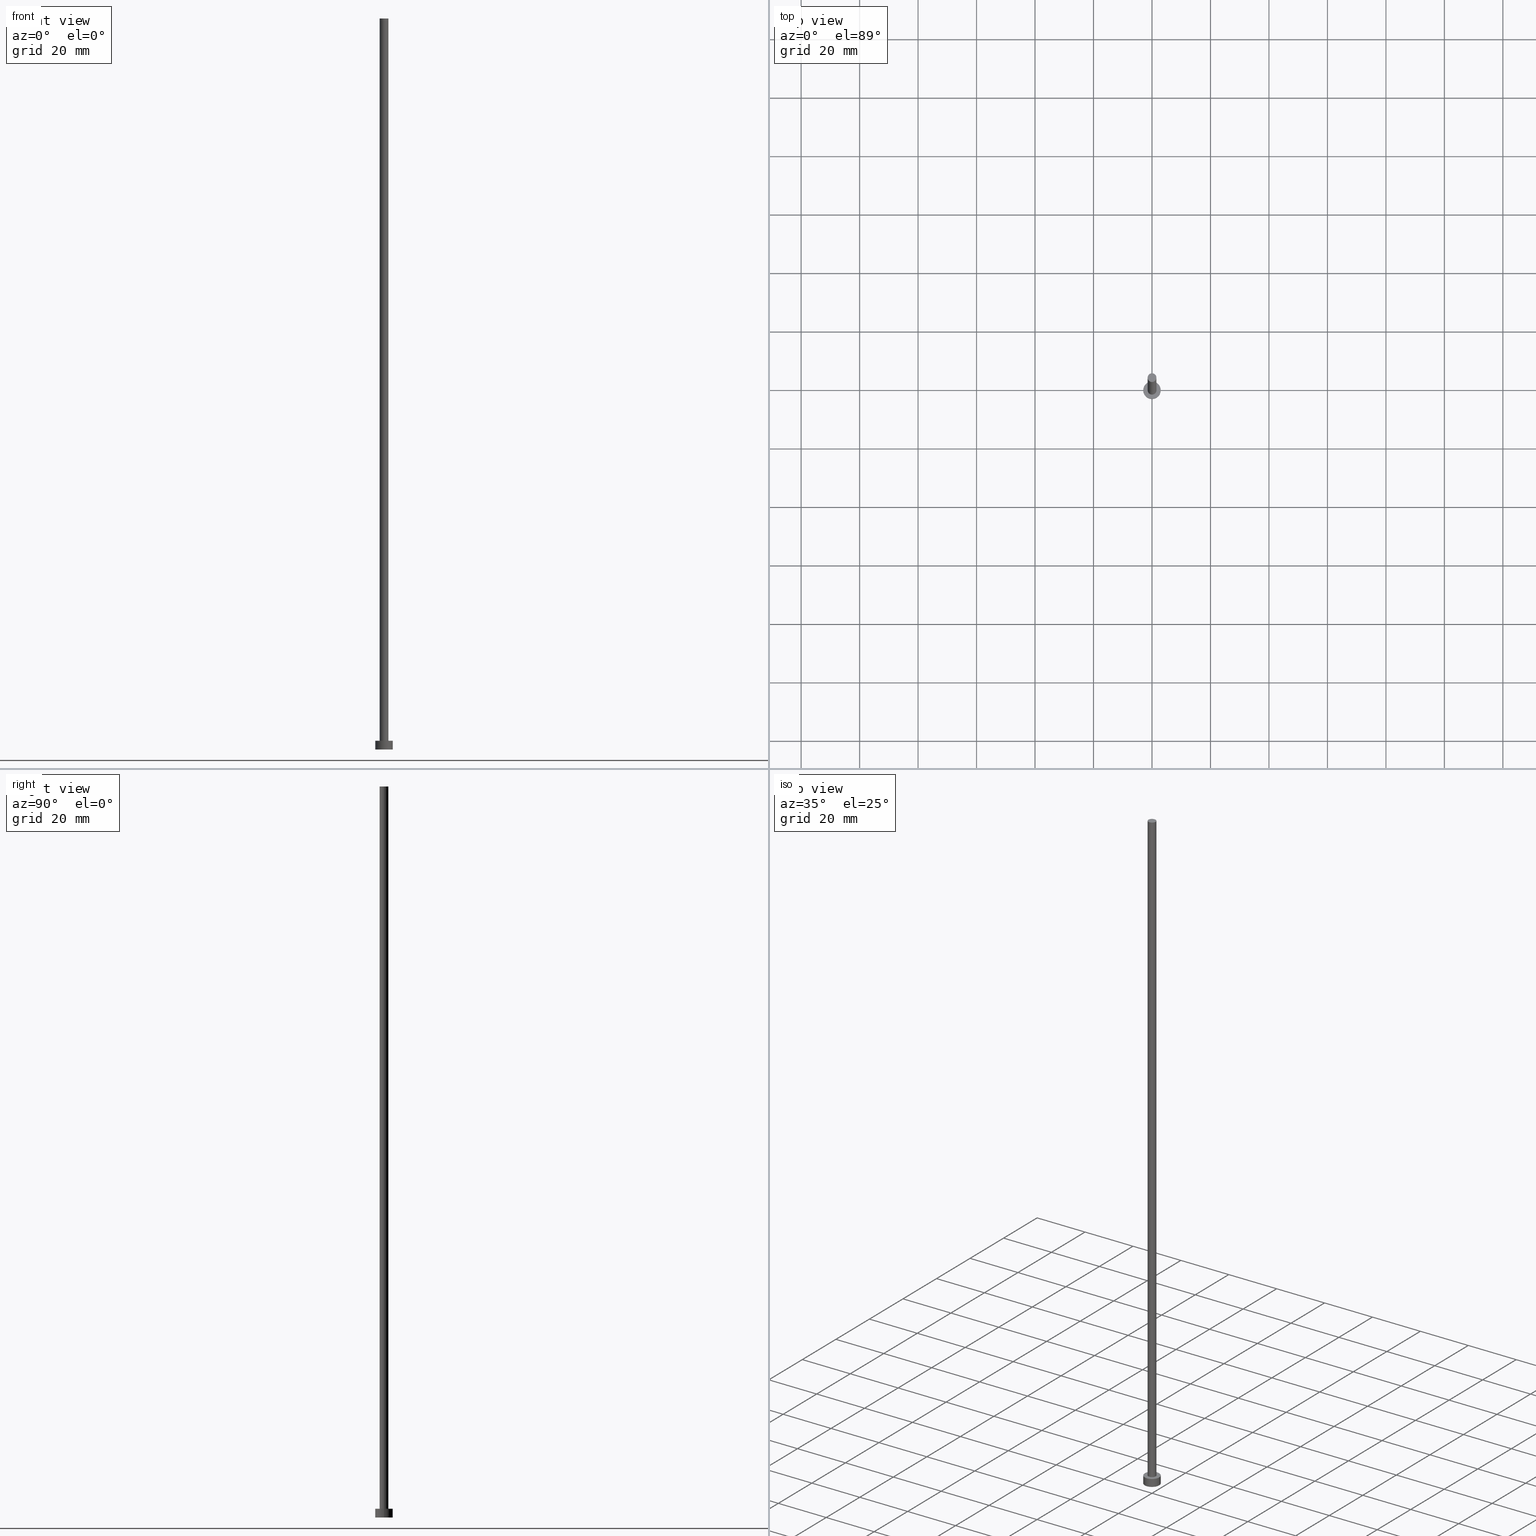
[diagram: canonical four-view strip — front | top / right | iso, engineering-drawing reading convention]
A machine part, canonical four-view strip (front | top / right | iso — engineering-drawing reading convention). The complete STEP part file that produces these views, byte-faithful:
ISO-10303-21;
HEADER;
FILE_DESCRIPTION (( 'STEP AP203' ),
    '1' );
FILE_NAME ('94ea.STEP',
    '2023-02-12T12:46:11',
    ( '' ),
    ( '' ),
    'SwSTEP 2.0',
    'SolidWorks 2019',
    '' );
FILE_SCHEMA (( 'CONFIG_CONTROL_DESIGN' ));
ENDSEC;

DATA;
#1 = LINE ( 'NONE', #101, #61 ) ;
#2 = AXIS2_PLACEMENT_3D ( 'NONE', #203, #209, #184 ) ;
#3 = APPROVAL_STATUS ( 'not_yet_approved' ) ;
#4 = DIRECTION ( 'NONE',  ( 1.000000000000000000, 0.000000000000000000, 0.000000000000000000 ) ) ;
#5 = CARTESIAN_POINT ( 'NONE',  ( -3.000000000000000444, 0.000000000000000000, 3.000000000000000000 ) ) ;
#6 = ADVANCED_FACE ( 'NONE', ( #95 ), #83, .T. ) ;
#7 = CC_DESIGN_APPROVAL ( #30, ( #85 ) ) ;
#8 = ORIENTED_EDGE ( 'NONE', *, *, #188, .F. ) ;
#9 = FACE_BOUND ( 'NONE', #77, .T. ) ;
#10 = DIRECTION ( 'NONE',  ( 0.000000000000000000, 0.000000000000000000, 1.000000000000000000 ) ) ;
#11 = ORIENTED_EDGE ( 'NONE', *, *, #226, .F. ) ;
#12 = COORDINATED_UNIVERSAL_TIME_OFFSET ( 1, 0, .AHEAD. ) ;
#13 = AXIS2_PLACEMENT_3D ( 'NONE', #186, #60, #115 ) ;
#14 = PERSON_AND_ORGANIZATION ( #250, #102 ) ;
#15 = DIRECTION ( 'NONE',  ( -0.000000000000000000, -0.000000000000000000, -1.000000000000000000 ) ) ;
#16 = DATE_AND_TIME ( #178, #173 ) ;
#17 = ORIENTED_EDGE ( 'NONE', *, *, #138, .F. ) ;
#18 = APPROVAL_PERSON_ORGANIZATION ( #108, #30, #183 ) ;
#19 = ADVANCED_FACE ( 'NONE', ( #9, #67 ), #44, .T. ) ;
#20 = ORIENTED_EDGE ( 'NONE', *, *, #97, .F. ) ;
#21 = ORIENTED_EDGE ( 'NONE', *, *, #71, .F. ) ;
#22 = ORIENTED_EDGE ( 'NONE', *, *, #175, .F. ) ;
#23 = DATE_AND_TIME ( #201, #143 ) ;
#24 = DIRECTION ( 'NONE',  ( 1.000000000000000000, 0.000000000000000000, -0.000000000000000000 ) ) ;
#25 = DIRECTION ( 'NONE',  ( -1.000000000000000000, 0.000000000000000000, 0.000000000000000000 ) ) ;
#26 = CC_DESIGN_APPROVAL ( #232, ( #233 ) ) ;
#27 = DIRECTION ( 'NONE',  ( -1.000000000000000000, 0.000000000000000000, 0.000000000000000000 ) ) ;
#28 = APPROVAL_ROLE ( '' ) ;
#29 = CARTESIAN_POINT ( 'NONE',  ( -1.500000000000000222, 0.000000000000000000, 250.0000000000000000 ) ) ;
#30 = APPROVAL ( #3, 'NEUR�EN�' ) ;
#31 = DIRECTION ( 'NONE',  ( 1.000000000000000000, 0.000000000000000000, 0.000000000000000000 ) ) ;
#32 = EDGE_LOOP ( 'NONE', ( #107, #89 ) ) ;
#33 = AXIS2_PLACEMENT_3D ( 'NONE', #187, #212, #234 ) ;
#34 = CARTESIAN_POINT ( 'NONE',  ( 3.000000000000000444, 3.673940397442060361E-16, 3.000000000000000000 ) ) ;
#35 = DIRECTION ( 'NONE',  ( 0.000000000000000000, 0.000000000000000000, 1.000000000000000000 ) ) ;
#36 = EDGE_LOOP ( 'NONE', ( #66, #21, #244, #160 ) ) ;
#37 = EDGE_CURVE ( 'NONE', #238, #55, #251, .T. ) ;
#38 =( LENGTH_UNIT ( ) NAMED_UNIT ( * ) SI_UNIT ( .MILLI., .METRE. ) );
#39 = ORIENTED_EDGE ( 'NONE', *, *, #164, .F. ) ;
#40 = DATE_AND_TIME ( #158, #247 ) ;
#41 = DIRECTION ( 'NONE',  ( 0.000000000000000000, 0.000000000000000000, 1.000000000000000000 ) ) ;
#42 = DIRECTION ( 'NONE',  ( 0.000000000000000000, 0.000000000000000000, 1.000000000000000000 ) ) ;
#43 = CC_DESIGN_DATE_AND_TIME_ASSIGNMENT ( #40, #214, ( #85 ) ) ;
#44 = PLANE ( 'NONE',  #159 ) ;
#45 =( NAMED_UNIT ( * ) SI_UNIT ( $, .STERADIAN. ) SOLID_ANGLE_UNIT ( ) );
#46 = CARTESIAN_POINT ( 'NONE',  ( 0.000000000000000000, 0.000000000000000000, 3.000000000000000000 ) ) ;
#47 = AXIS2_PLACEMENT_3D ( 'NONE', #110, #248, #24 ) ;
#48 = CALENDAR_DATE ( 2023, 12, 2 ) ;
#49 = PERSON_AND_ORGANIZATION_ROLE ( 'creator' ) ;
#50 = CARTESIAN_POINT ( 'NONE',  ( 0.000000000000000000, 0.000000000000000000, 250.0000000000000000 ) ) ;
#51 = PRODUCT_RELATED_PRODUCT_CATEGORY ( 'detail', '', ( #198 ) ) ;
#52 =( NAMED_UNIT ( * ) PLANE_ANGLE_UNIT ( ) SI_UNIT ( $, .RADIAN. ) );
#53 = ORIENTED_EDGE ( 'NONE', *, *, #255, .F. ) ;
#54 = LOCAL_TIME ( 13, 46, 11.00000000000000000, #150 ) ;
#55 = VERTEX_POINT ( 'NONE', #82 ) ;
#56 = ADVANCED_FACE ( 'NONE', ( #146 ), #231, .T. ) ;
#57 = ORIENTED_EDGE ( 'NONE', *, *, #37, .T. ) ;
#58 = SECURITY_CLASSIFICATION_LEVEL ( 'unclassified' ) ;
#59 = CARTESIAN_POINT ( 'NONE',  ( 0.000000000000000000, 0.000000000000000000, 3.000000000000000000 ) ) ;
#60 = DIRECTION ( 'NONE',  ( 0.000000000000000000, 0.000000000000000000, 1.000000000000000000 ) ) ;
#61 = VECTOR ( 'NONE', #15, 1000.000000000000000 ) ;
#62 = ADVANCED_FACE ( 'NONE', ( #145 ), #202, .T. ) ;
#63 = PERSON_AND_ORGANIZATION_ROLE ( 'design_owner' ) ;
#64 = VERTEX_POINT ( 'NONE', #137 ) ;
#65 = LOCAL_TIME ( 13, 46, 11.00000000000000000, #124 ) ;
#66 = ORIENTED_EDGE ( 'NONE', *, *, #169, .F. ) ;
#67 = FACE_OUTER_BOUND ( 'NONE', #74, .T. ) ;
#68 = APPROVAL_STATUS ( 'not_yet_approved' ) ;
#69 = CARTESIAN_POINT ( 'NONE',  ( 0.000000000000000000, 0.000000000000000000, 250.0000000000000000 ) ) ;
#70 = ADVANCED_FACE ( 'NONE', ( #116 ), #229, .F. ) ;
#71 = EDGE_CURVE ( 'NONE', #241, #192, #215, .T. ) ;
#72 = LINE ( 'NONE', #34, #249 ) ;
#73 = CARTESIAN_POINT ( 'NONE',  ( 0.000000000000000000, 0.000000000000000000, 3.000000000000000000 ) ) ;
#74 = EDGE_LOOP ( 'NONE', ( #134, #239 ) ) ;
#75 =( GEOMETRIC_REPRESENTATION_CONTEXT ( 3 ) GLOBAL_UNCERTAINTY_ASSIGNED_CONTEXT ( ( #207 ) ) GLOBAL_UNIT_ASSIGNED_CONTEXT ( ( #38, #52, #45 ) ) REPRESENTATION_CONTEXT ( 'NONE', 'WORKASPACE' ) );
#76 = DESIGN_CONTEXT ( 'detailed design', #154, 'design' ) ;
#77 = EDGE_LOOP ( 'NONE', ( #20, #17 ) ) ;
#78 = CIRCLE ( 'NONE', #230, 1.500000000000000222 ) ;
#79 = PERSON_AND_ORGANIZATION ( #250, #102 ) ;
#80 = DIRECTION ( 'NONE',  ( 0.000000000000000000, 0.000000000000000000, 1.000000000000000000 ) ) ;
#81 = PERSON_AND_ORGANIZATION ( #250, #102 ) ;
#82 = CARTESIAN_POINT ( 'NONE',  ( -1.500000000000000222, 0.000000000000000000, 3.000000000000000000 ) ) ;
#83 = CYLINDRICAL_SURFACE ( 'NONE', #220, 3.000000000000000444 ) ;
#84 = APPROVAL ( #68, 'NEUR�EN�' ) ;
#85 = SECURITY_CLASSIFICATION ( '', '', #58 ) ;
#86 = CC_DESIGN_PERSON_AND_ORGANIZATION_ASSIGNMENT ( #224, #196, ( #85 ) ) ;
#87 = DIRECTION ( 'NONE',  ( 1.000000000000000000, 0.000000000000000000, 0.000000000000000000 ) ) ;
#88 = CC_DESIGN_APPROVAL ( #84, ( #136 ) ) ;
#89 = ORIENTED_EDGE ( 'NONE', *, *, #123, .T. ) ;
#90 = ORIENTED_EDGE ( 'NONE', *, *, #205, .F. ) ;
#91 = PRODUCT_DEFINITION_SHAPE ( 'NONE', 'NONE',  #233 ) ;
#92 = PERSON_AND_ORGANIZATION_ROLE ( 'creator' ) ;
#93 = MECHANICAL_CONTEXT ( 'NONE', #243, 'mechanical' ) ;
#94 = DIRECTION ( 'NONE',  ( -0.000000000000000000, -0.000000000000000000, -1.000000000000000000 ) ) ;
#95 = FACE_OUTER_BOUND ( 'NONE', #174, .T. ) ;
#96 = DIRECTION ( 'NONE',  ( -1.000000000000000000, 0.000000000000000000, 0.000000000000000000 ) ) ;
#97 = EDGE_CURVE ( 'NONE', #55, #199, #139, .T. ) ;
#98 = CARTESIAN_POINT ( 'NONE',  ( 1.500000000000000222, 1.836970198721030181E-16, 250.0000000000000000 ) ) ;
#99 = AXIS2_PLACEMENT_3D ( 'NONE', #204, #222, #31 ) ;
#100 = DIRECTION ( 'NONE',  ( -0.000000000000000000, -0.000000000000000000, -1.000000000000000000 ) ) ;
#101 = CARTESIAN_POINT ( 'NONE',  ( -3.000000000000000444, 0.000000000000000000, 3.000000000000000000 ) ) ;
#102 = ORGANIZATION ( 'NEUR�EN�', 'NEUR�EN�', '' ) ;
#103 = ORIENTED_EDGE ( 'NONE', *, *, #123, .F. ) ;
#104 = DIRECTION ( 'NONE',  ( 0.000000000000000000, 0.000000000000000000, 1.000000000000000000 ) ) ;
#105 = ORIENTED_EDGE ( 'NONE', *, *, #226, .T. ) ;
#106 = CC_DESIGN_PERSON_AND_ORGANIZATION_ASSIGNMENT ( #81, #63, ( #198 ) ) ;
#107 = ORIENTED_EDGE ( 'NONE', *, *, #188, .T. ) ;
#108 = PERSON_AND_ORGANIZATION ( #250, #102 ) ;
#109 = APPROVAL_PERSON_ORGANIZATION ( #14, #84, #167 ) ;
#110 = CARTESIAN_POINT ( 'NONE',  ( 0.000000000000000000, 0.000000000000000000, 250.0000000000000000 ) ) ;
#111 = COORDINATED_UNIVERSAL_TIME_OFFSET ( 1, 0, .AHEAD. ) ;
#112 = VECTOR ( 'NONE', #142, 1000.000000000000000 ) ;
#113 = DIRECTION ( 'NONE',  ( 1.000000000000000000, 0.000000000000000000, -0.000000000000000000 ) ) ;
#114 = APPLICATION_PROTOCOL_DEFINITION ( 'international standard', 'config_control_design', 1994, #243 ) ;
#115 = DIRECTION ( 'NONE',  ( 1.000000000000000000, 0.000000000000000000, 0.000000000000000000 ) ) ;
#116 = FACE_OUTER_BOUND ( 'NONE', #221, .T. ) ;
#117 = DIRECTION ( 'NONE',  ( 1.000000000000000000, 0.000000000000000000, -0.000000000000000000 ) ) ;
#118 = DATE_AND_TIME ( #48, #65 ) ;
#119 = FACE_OUTER_BOUND ( 'NONE', #228, .T. ) ;
#120 = CIRCLE ( 'NONE', #166, 1.500000000000000222 ) ;
#121 = DATE_TIME_ROLE ( 'creation_date' ) ;
#122 = DIRECTION ( 'NONE',  ( -0.000000000000000000, -0.000000000000000000, -1.000000000000000000 ) ) ;
#123 = EDGE_CURVE ( 'NONE', #216, #238, #227, .T. ) ;
#124 = COORDINATED_UNIVERSAL_TIME_OFFSET ( 1, 0, .AHEAD. ) ;
#125 = DIRECTION ( 'NONE',  ( 1.000000000000000000, 0.000000000000000000, 0.000000000000000000 ) ) ;
#126 = VECTOR ( 'NONE', #100, 1000.000000000000000 ) ;
#127 = LINE ( 'NONE', #98, #126 ) ;
#128 = CARTESIAN_POINT ( 'NONE',  ( 0.000000000000000000, 0.000000000000000000, 0.000000000000000000 ) ) ;
#129 = CC_DESIGN_PERSON_AND_ORGANIZATION_ASSIGNMENT ( #79, #49, ( #233 ) ) ;
#130 = CC_DESIGN_PERSON_AND_ORGANIZATION_ASSIGNMENT ( #245, #237, ( #136 ) ) ;
#131 = DATE_AND_TIME ( #135, #54 ) ;
#132 = CARTESIAN_POINT ( 'NONE',  ( -1.500000000000000222, 0.000000000000000000, 250.0000000000000000 ) ) ;
#133 = COORDINATED_UNIVERSAL_TIME_OFFSET ( 1, 0, .AHEAD. ) ;
#134 = ORIENTED_EDGE ( 'NONE', *, *, #71, .T. ) ;
#135 = CALENDAR_DATE ( 2023, 12, 2 ) ;
#136 = PRODUCT_DEFINITION_FORMATION_WITH_SPECIFIED_SOURCE ( 'LIBOVOLN�', '', #198, .NOT_KNOWN. ) ;
#137 = CARTESIAN_POINT ( 'NONE',  ( -3.000000000000000444, 0.000000000000000000, 0.000000000000000000 ) ) ;
#138 = EDGE_CURVE ( 'NONE', #199, #55, #78, .T. ) ;
#139 = CIRCLE ( 'NONE', #191, 1.500000000000000222 ) ;
#140 = CARTESIAN_POINT ( 'NONE',  ( 0.000000000000000000, 0.000000000000000000, 3.000000000000000000 ) ) ;
#141 = APPLICATION_PROTOCOL_DEFINITION ( 'international standard', 'config_control_design', 1994, #154 ) ;
#142 = DIRECTION ( 'NONE',  ( -0.000000000000000000, -0.000000000000000000, -1.000000000000000000 ) ) ;
#143 = LOCAL_TIME ( 13, 46, 11.00000000000000000, #12 ) ;
#144 = APPROVAL_STATUS ( 'not_yet_approved' ) ;
#145 = FACE_OUTER_BOUND ( 'NONE', #36, .T. ) ;
#146 = FACE_OUTER_BOUND ( 'NONE', #32, .T. ) ;
#147 = AXIS2_PLACEMENT_3D ( 'NONE', #225, #41, #113 ) ;
#148 = DIRECTION ( 'NONE',  ( 0.000000000000000000, 0.000000000000000000, 1.000000000000000000 ) ) ;
#149 = DIRECTION ( 'NONE',  ( -0.000000000000000000, -0.000000000000000000, -1.000000000000000000 ) ) ;
#150 = COORDINATED_UNIVERSAL_TIME_OFFSET ( 1, 0, .AHEAD. ) ;
#151 = CARTESIAN_POINT ( 'NONE',  ( 1.500000000000000222, 1.836970198721030181E-16, 250.0000000000000000 ) ) ;
#152 = ORIENTED_EDGE ( 'NONE', *, *, #97, .T. ) ;
#153 = AXIS2_PLACEMENT_3D ( 'NONE', #59, #94, #25 ) ;
#154 = APPLICATION_CONTEXT ( 'configuration controlled 3d designs of mechanical parts and assemblies' ) ;
#155 = DIRECTION ( 'NONE',  ( 0.000000000000000000, 0.000000000000000000, 1.000000000000000000 ) ) ;
#156 = AXIS2_PLACEMENT_3D ( 'NONE', #128, #35, #4 ) ;
#157 = ORIENTED_EDGE ( 'NONE', *, *, #175, .T. ) ;
#158 = CALENDAR_DATE ( 2023, 12, 2 ) ;
#159 = AXIS2_PLACEMENT_3D ( 'NONE', #165, #80, #117 ) ;
#160 = ORIENTED_EDGE ( 'NONE', *, *, #205, .T. ) ;
#161 = ADVANCED_BREP_SHAPE_REPRESENTATION ( '94ea', ( #213, #99 ), #75 ) ;
#162 = DIRECTION ( 'NONE',  ( -0.000000000000000000, -0.000000000000000000, -1.000000000000000000 ) ) ;
#163 = DIRECTION ( 'NONE',  ( 1.000000000000000000, 0.000000000000000000, 0.000000000000000000 ) ) ;
#164 = EDGE_CURVE ( 'NONE', #241, #64, #1, .T. ) ;
#165 = CARTESIAN_POINT ( 'NONE',  ( 0.000000000000000000, 0.000000000000000000, 3.000000000000000000 ) ) ;
#166 = AXIS2_PLACEMENT_3D ( 'NONE', #50, #148, #87 ) ;
#167 = APPROVAL_ROLE ( '' ) ;
#168 = CARTESIAN_POINT ( 'NONE',  ( 1.500000000000000222, 1.836970198721030181E-16, 3.000000000000000000 ) ) ;
#169 = EDGE_CURVE ( 'NONE', #192, #182, #72, .T. ) ;
#170 = CARTESIAN_POINT ( 'NONE',  ( 3.000000000000000444, 3.673940397442060361E-16, 0.000000000000000000 ) ) ;
#171 = SHAPE_DEFINITION_REPRESENTATION ( #91, #161 ) ;
#172 = CYLINDRICAL_SURFACE ( 'NONE', #33, 1.500000000000000222 ) ;
#173 = LOCAL_TIME ( 13, 46, 11.00000000000000000, #133 ) ;
#174 = EDGE_LOOP ( 'NONE', ( #53, #219, #105, #39 ) ) ;
#175 = EDGE_CURVE ( 'NONE', #216, #199, #127, .T. ) ;
#176 = AXIS2_PLACEMENT_3D ( 'NONE', #73, #155, #240 ) ;
#177 = EDGE_LOOP ( 'NONE', ( #103, #157, #223, #194 ) ) ;
#178 = CALENDAR_DATE ( 2023, 12, 2 ) ;
#179 = APPROVAL_DATE_TIME ( #131, #84 ) ;
#180 = ADVANCED_FACE ( 'NONE', ( #190 ), #172, .T. ) ;
#181 = APPROVAL_DATE_TIME ( #23, #232 ) ;
#182 = VERTEX_POINT ( 'NONE', #170 ) ;
#183 = APPROVAL_ROLE ( '' ) ;
#184 = DIRECTION ( 'NONE',  ( 1.000000000000000000, 0.000000000000000000, 0.000000000000000000 ) ) ;
#185 = CC_DESIGN_PERSON_AND_ORGANIZATION_ASSIGNMENT ( #246, #92, ( #136 ) ) ;
#186 = CARTESIAN_POINT ( 'NONE',  ( 0.000000000000000000, 0.000000000000000000, 250.0000000000000000 ) ) ;
#187 = CARTESIAN_POINT ( 'NONE',  ( 0.000000000000000000, 0.000000000000000000, 250.0000000000000000 ) ) ;
#188 = EDGE_CURVE ( 'NONE', #238, #216, #120, .T. ) ;
#189 = AXIS2_PLACEMENT_3D ( 'NONE', #254, #104, #195 ) ;
#190 = FACE_OUTER_BOUND ( 'NONE', #177, .T. ) ;
#191 = AXIS2_PLACEMENT_3D ( 'NONE', #46, #10, #163 ) ;
#192 = VERTEX_POINT ( 'NONE', #236 ) ;
#193 = CC_DESIGN_SECURITY_CLASSIFICATION ( #85, ( #136 ) ) ;
#194 = ORIENTED_EDGE ( 'NONE', *, *, #37, .F. ) ;
#195 = DIRECTION ( 'NONE',  ( 1.000000000000000000, 0.000000000000000000, 0.000000000000000000 ) ) ;
#196 = PERSON_AND_ORGANIZATION_ROLE ( 'classification_officer' ) ;
#197 = CIRCLE ( 'NONE', #189, 3.000000000000000444 ) ;
#198 = PRODUCT ( '94ea', '94ea', '', ( #93 ) ) ;
#199 = VERTEX_POINT ( 'NONE', #168 ) ;
#200 = APPROVAL_DATE_TIME ( #16, #30 ) ;
#201 = CALENDAR_DATE ( 2023, 12, 2 ) ;
#202 = CYLINDRICAL_SURFACE ( 'NONE', #153, 3.000000000000000444 ) ;
#203 = CARTESIAN_POINT ( 'NONE',  ( 0.000000000000000000, 0.000000000000000000, 3.000000000000000000 ) ) ;
#204 = CARTESIAN_POINT ( 'NONE',  ( 0.000000000000000000, 0.000000000000000000, 0.000000000000000000 ) ) ;
#205 = EDGE_CURVE ( 'NONE', #64, #182, #218, .T. ) ;
#206 = CIRCLE ( 'NONE', #176, 3.000000000000000444 ) ;
#207 = UNCERTAINTY_MEASURE_WITH_UNIT (LENGTH_MEASURE( 1.000000000000000082E-05 ), #38, 'distance_accuracy_value', 'NONE');
#208 = PERSON_AND_ORGANIZATION ( #250, #102 ) ;
#209 = DIRECTION ( 'NONE',  ( 0.000000000000000000, 0.000000000000000000, 1.000000000000000000 ) ) ;
#210 = AXIS2_PLACEMENT_3D ( 'NONE', #69, #122, #96 ) ;
#211 = APPROVAL_PERSON_ORGANIZATION ( #208, #232, #28 ) ;
#212 = DIRECTION ( 'NONE',  ( -0.000000000000000000, -0.000000000000000000, -1.000000000000000000 ) ) ;
#213 = MANIFOLD_SOLID_BREP ( 'P�idat vysunut�m3', #235 ) ;
#214 = DATE_TIME_ROLE ( 'classification_date' ) ;
#215 = CIRCLE ( 'NONE', #2, 3.000000000000000444 ) ;
#216 = VERTEX_POINT ( 'NONE', #151 ) ;
#217 = ADVANCED_FACE ( 'NONE', ( #119 ), #253, .T. ) ;
#218 = CIRCLE ( 'NONE', #156, 3.000000000000000444 ) ;
#219 = ORIENTED_EDGE ( 'NONE', *, *, #169, .T. ) ;
#220 = AXIS2_PLACEMENT_3D ( 'NONE', #252, #162, #27 ) ;
#221 = EDGE_LOOP ( 'NONE', ( #90, #11 ) ) ;
#222 = DIRECTION ( 'NONE',  ( 0.000000000000000000, 0.000000000000000000, 1.000000000000000000 ) ) ;
#223 = ORIENTED_EDGE ( 'NONE', *, *, #138, .T. ) ;
#224 = PERSON_AND_ORGANIZATION ( #250, #102 ) ;
#225 = CARTESIAN_POINT ( 'NONE',  ( 0.000000000000000000, 0.000000000000000000, 0.000000000000000000 ) ) ;
#226 = EDGE_CURVE ( 'NONE', #182, #64, #197, .T. ) ;
#227 = CIRCLE ( 'NONE', #13, 1.500000000000000222 ) ;
#228 = EDGE_LOOP ( 'NONE', ( #22, #8, #57, #152 ) ) ;
#229 = PLANE ( 'NONE',  #147 ) ;
#230 = AXIS2_PLACEMENT_3D ( 'NONE', #140, #42, #125 ) ;
#231 = PLANE ( 'NONE',  #47 ) ;
#232 = APPROVAL ( #144, 'NEUR�EN�' ) ;
#233 = PRODUCT_DEFINITION ( 'NEZN�M�', '', #136, #76 ) ;
#234 = DIRECTION ( 'NONE',  ( -1.000000000000000000, 0.000000000000000000, 0.000000000000000000 ) ) ;
#235 = CLOSED_SHELL ( 'NONE', ( #180, #6, #62, #19, #70, #217, #56 ) ) ;
#236 = CARTESIAN_POINT ( 'NONE',  ( 3.000000000000000444, 3.673940397442060361E-16, 3.000000000000000000 ) ) ;
#237 = PERSON_AND_ORGANIZATION_ROLE ( 'design_supplier' ) ;
#238 = VERTEX_POINT ( 'NONE', #132 ) ;
#239 = ORIENTED_EDGE ( 'NONE', *, *, #255, .T. ) ;
#240 = DIRECTION ( 'NONE',  ( 1.000000000000000000, 0.000000000000000000, 0.000000000000000000 ) ) ;
#241 = VERTEX_POINT ( 'NONE', #5 ) ;
#242 = CC_DESIGN_DATE_AND_TIME_ASSIGNMENT ( #118, #121, ( #233 ) ) ;
#243 = APPLICATION_CONTEXT ( 'configuration controlled 3d designs of mechanical parts and assemblies' ) ;
#244 = ORIENTED_EDGE ( 'NONE', *, *, #164, .T. ) ;
#245 = PERSON_AND_ORGANIZATION ( #250, #102 ) ;
#246 = PERSON_AND_ORGANIZATION ( #250, #102 ) ;
#247 = LOCAL_TIME ( 13, 46, 11.00000000000000000, #111 ) ;
#248 = DIRECTION ( 'NONE',  ( 0.000000000000000000, 0.000000000000000000, 1.000000000000000000 ) ) ;
#249 = VECTOR ( 'NONE', #149, 1000.000000000000000 ) ;
#250 = PERSON ( 'NEUR�EN�', 'NEUR�EN�', 'NEUR�EN�', ('NEUR�EN�'), ('NEUR�EN�'), ('NEUR�EN�') ) ;
#251 = LINE ( 'NONE', #29, #112 ) ;
#252 = CARTESIAN_POINT ( 'NONE',  ( 0.000000000000000000, 0.000000000000000000, 3.000000000000000000 ) ) ;
#253 = CYLINDRICAL_SURFACE ( 'NONE', #210, 1.500000000000000222 ) ;
#254 = CARTESIAN_POINT ( 'NONE',  ( 0.000000000000000000, 0.000000000000000000, 0.000000000000000000 ) ) ;
#255 = EDGE_CURVE ( 'NONE', #192, #241, #206, .T. ) ;
ENDSEC;
END-ISO-10303-21;
